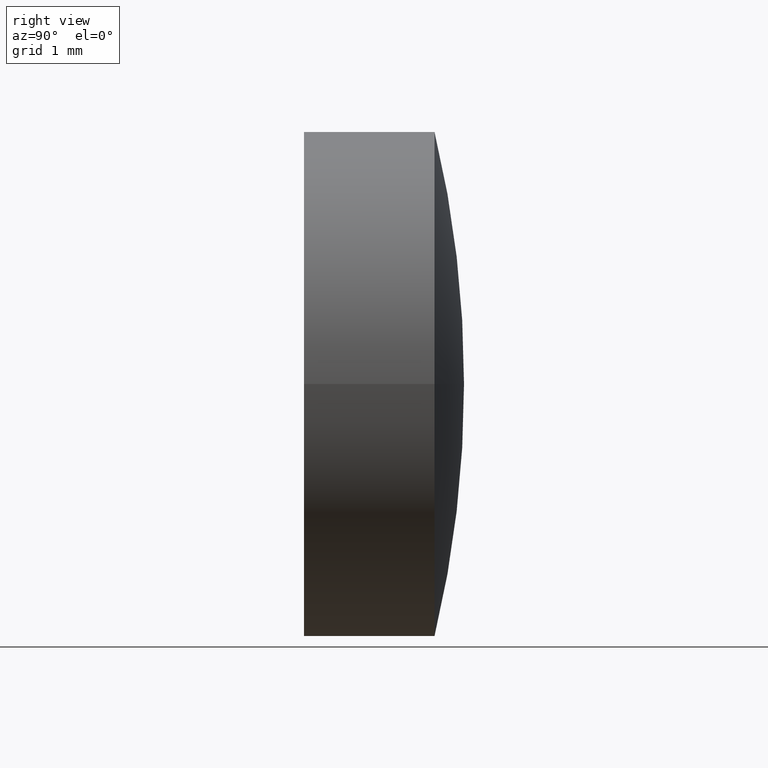
[diagram: clean part render]
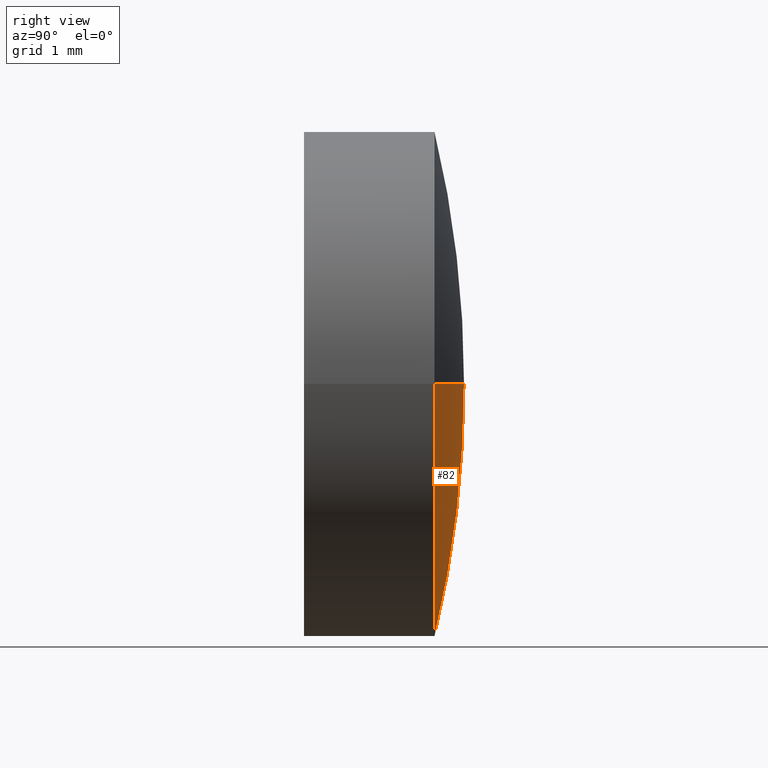
[diagram: same view with one face highlighted and labeled with its STEP entity id]
A machine part, right view. The second image highlights one B-rep face of the part: STEP entity #82.
In plain terms, the highlighted toroidal blend (fillet) surface has major radius 0.0143 mm and minor (blend) radius 12.91 mm.
Its self-contained STEP definition (entity closure, byte-faithful):
#2 = CARTESIAN_POINT ( 'NONE',  ( 1.224646799147351420E-17, 1.899999999999999911, 0.000000000000000000 ) ) ;
#5 = CARTESIAN_POINT ( 'NONE',  ( 0.01425091764846829478, -11.00999213444168134, 1.745234068310931039E-18 ) ) ;
#17 = FACE_OUTER_BOUND ( 'NONE', #192, .T. ) ;
#20 = CIRCLE ( 'NONE', #179, 12.90999999999999837 ) ;
#27 = DIRECTION ( 'NONE',  ( 6.445509469196587961E-18, 1.000000000000000000, -0.000000000000000000 ) ) ;
#32 = CIRCLE ( 'NONE', #138, 3.000000000000000000 ) ;
#34 = EDGE_CURVE ( 'NONE', #131, #38, #20, .T. ) ;
#38 = VERTEX_POINT ( 'NONE', #2 ) ;
#58 = AXIS2_PLACEMENT_3D ( 'NONE', #101, #159, #170 ) ;
#61 = ORIENTED_EDGE ( 'NONE', *, *, #34, .F. ) ;
#65 = DIRECTION ( 'NONE',  ( -1.224646799147353207E-16, 7.893472540325556544E-34, 1.000000000000000000 ) ) ;
#76 = CIRCLE ( 'NONE', #58, 12.90999999999999837 ) ;
#82 = ADVANCED_FACE ( 'NONE', ( #17 ), #121, .T. ) ;
#85 = CARTESIAN_POINT ( 'NONE',  ( -7.115076756936122848E-17, -11.00999213444168134, 0.000000000000000000 ) ) ;
#87 = DIRECTION ( 'NONE',  ( -1.000000000000000000, 0.000000000000000000, 0.000000000000000000 ) ) ;
#100 = CARTESIAN_POINT ( 'NONE',  ( -3.000000000000004441, 1.549999999999999378, 0.000000000000000000 ) ) ;
#101 = CARTESIAN_POINT ( 'NONE',  ( -0.01425091764846843703, -11.00999213444168134, 0.000000000000000000 ) ) ;
#103 = CARTESIAN_POINT ( 'NONE',  ( 9.990539677254705870E-18, 1.549999999999999600, 0.000000000000000000 ) ) ;
#105 = DIRECTION ( 'NONE',  ( -1.000000000000000000, 6.445509469196587191E-18, 0.000000000000000000 ) ) ;
#108 = VERTEX_POINT ( 'NONE', #100 ) ;
#121 = TOROIDAL_SURFACE ( 'NONE', #128, 0.01425091764846836591, 12.90999999999999837 ) ;
#125 = ORIENTED_EDGE ( 'NONE', *, *, #155, .T. ) ;
#128 = AXIS2_PLACEMENT_3D ( 'NONE', #85, #144, #105 ) ;
#131 = VERTEX_POINT ( 'NONE', #168 ) ;
#138 = AXIS2_PLACEMENT_3D ( 'NONE', #103, #27, #87 ) ;
#143 = DIRECTION ( 'NONE',  ( 1.000000000000000000, 0.000000000000000000, 1.224646799147353207E-16 ) ) ;
#144 = DIRECTION ( 'NONE',  ( 6.445509469196587961E-18, 1.000000000000000000, -0.000000000000000000 ) ) ;
#155 = EDGE_CURVE ( 'NONE', #131, #108, #32, .T. ) ;
#159 = DIRECTION ( 'NONE',  ( -0.000000000000000000, 0.000000000000000000, -1.000000000000000000 ) ) ;
#160 = ORIENTED_EDGE ( 'NONE', *, *, #188, .T. ) ;
#168 = CARTESIAN_POINT ( 'NONE',  ( 3.000000000000004441, 1.549999999999999378, 3.673940397442064798E-16 ) ) ;
#170 = DIRECTION ( 'NONE',  ( -1.000000000000000000, 0.000000000000000000, 0.000000000000000000 ) ) ;
#179 = AXIS2_PLACEMENT_3D ( 'NONE', #5, #65, #143 ) ;
#188 = EDGE_CURVE ( 'NONE', #108, #38, #76, .T. ) ;
#192 = EDGE_LOOP ( 'NONE', ( #61, #125, #160 ) ) ;